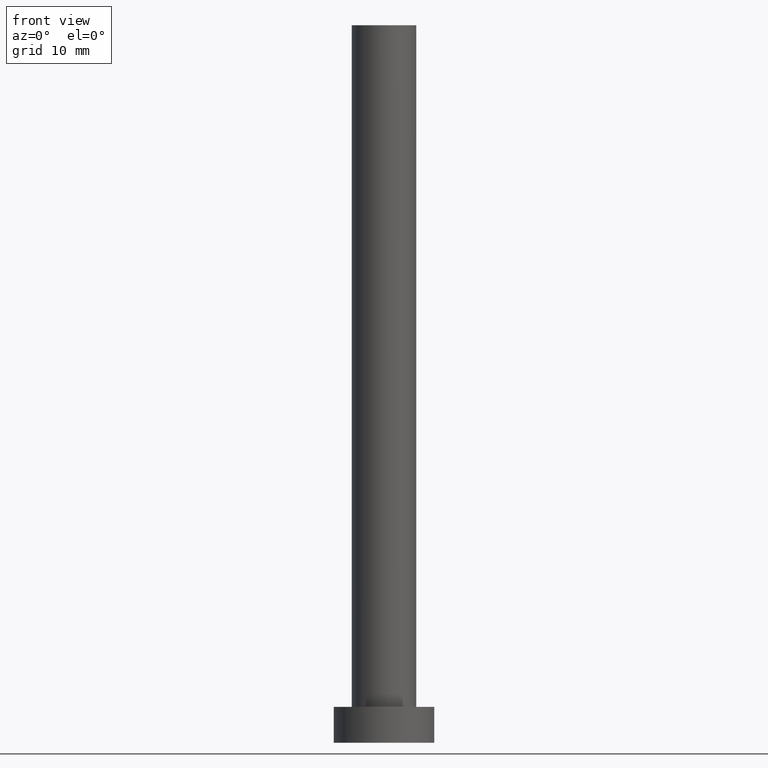
[diagram: clean part render]
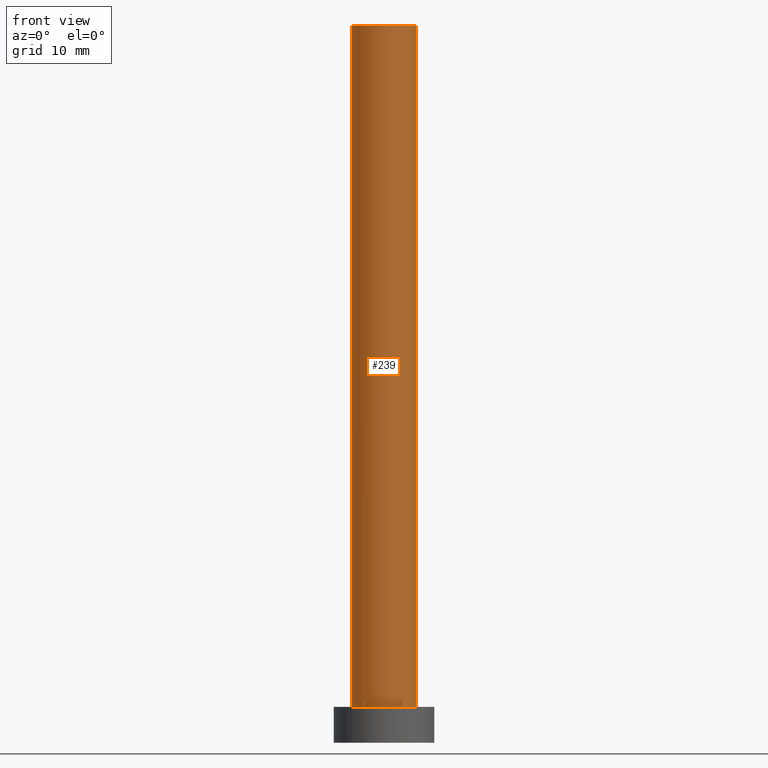
[diagram: same view with one face highlighted and labeled with its STEP entity id]
A machine part, front view. The second image highlights one B-rep face of the part: STEP entity #239.
In plain terms, the highlighted cylindrical surface (edge-blend (fillet) strip) has radius 4.5 mm, axis along (-0, -0, -1).
Its self-contained STEP definition (entity closure, byte-faithful):
#7 = DIRECTION ( 'NONE',  ( -0.000000000000000000, -0.000000000000000000, -1.000000000000000000 ) ) ;
#22 = DIRECTION ( 'NONE',  ( 0.000000000000000000, 0.000000000000000000, 1.000000000000000000 ) ) ;
#24 = CARTESIAN_POINT ( 'NONE',  ( 0.000000000000000000, 0.000000000000000000, 100.0000000000000000 ) ) ;
#38 = VECTOR ( 'NONE', #121, 1000.000000000000000 ) ;
#39 = LINE ( 'NONE', #196, #213 ) ;
#43 = DIRECTION ( 'NONE',  ( -0.000000000000000000, -0.000000000000000000, -1.000000000000000000 ) ) ;
#44 = CARTESIAN_POINT ( 'NONE',  ( 4.500000000000000888, 5.510910596163089556E-16, 100.0000000000000000 ) ) ;
#46 = CARTESIAN_POINT ( 'NONE',  ( 4.500000000000000888, 5.510910596163089556E-16, 100.0000000000000000 ) ) ;
#51 = CARTESIAN_POINT ( 'NONE',  ( -4.500000000000000888, 0.000000000000000000, 5.000000000000000000 ) ) ;
#52 = CIRCLE ( 'NONE', #220, 4.500000000000000888 ) ;
#62 = CARTESIAN_POINT ( 'NONE',  ( -4.500000000000000888, 0.000000000000000000, 100.0000000000000000 ) ) ;
#75 = CYLINDRICAL_SURFACE ( 'NONE', #87, 4.500000000000000888 ) ;
#87 = AXIS2_PLACEMENT_3D ( 'NONE', #165, #7, #96 ) ;
#96 = DIRECTION ( 'NONE',  ( -1.000000000000000000, 0.000000000000000000, 0.000000000000000000 ) ) ;
#103 = EDGE_LOOP ( 'NONE', ( #138, #114, #143, #170 ) ) ;
#105 = DIRECTION ( 'NONE',  ( 1.000000000000000000, 0.000000000000000000, 0.000000000000000000 ) ) ;
#114 = ORIENTED_EDGE ( 'NONE', *, *, #254, .F. ) ;
#120 = AXIS2_PLACEMENT_3D ( 'NONE', #197, #22, #105 ) ;
#121 = DIRECTION ( 'NONE',  ( -0.000000000000000000, -0.000000000000000000, -1.000000000000000000 ) ) ;
#138 = ORIENTED_EDGE ( 'NONE', *, *, #191, .F. ) ;
#142 = FACE_OUTER_BOUND ( 'NONE', #103, .T. ) ;
#143 = ORIENTED_EDGE ( 'NONE', *, *, #166, .T. ) ;
#147 = VERTEX_POINT ( 'NONE', #62 ) ;
#165 = CARTESIAN_POINT ( 'NONE',  ( 0.000000000000000000, 0.000000000000000000, 100.0000000000000000 ) ) ;
#166 = EDGE_CURVE ( 'NONE', #147, #253, #39, .T. ) ;
#169 = DIRECTION ( 'NONE',  ( 1.000000000000000000, 0.000000000000000000, 0.000000000000000000 ) ) ;
#170 = ORIENTED_EDGE ( 'NONE', *, *, #181, .T. ) ;
#179 = VERTEX_POINT ( 'NONE', #44 ) ;
#181 = EDGE_CURVE ( 'NONE', #253, #240, #230, .T. ) ;
#191 = EDGE_CURVE ( 'NONE', #179, #240, #233, .T. ) ;
#196 = CARTESIAN_POINT ( 'NONE',  ( -4.500000000000000888, 0.000000000000000000, 100.0000000000000000 ) ) ;
#197 = CARTESIAN_POINT ( 'NONE',  ( 0.000000000000000000, 0.000000000000000000, 5.000000000000000000 ) ) ;
#200 = DIRECTION ( 'NONE',  ( 0.000000000000000000, 0.000000000000000000, 1.000000000000000000 ) ) ;
#206 = CARTESIAN_POINT ( 'NONE',  ( 4.500000000000000888, 5.510910596163089556E-16, 5.000000000000000000 ) ) ;
#213 = VECTOR ( 'NONE', #43, 1000.000000000000000 ) ;
#220 = AXIS2_PLACEMENT_3D ( 'NONE', #24, #200, #169 ) ;
#230 = CIRCLE ( 'NONE', #120, 4.500000000000000888 ) ;
#233 = LINE ( 'NONE', #46, #38 ) ;
#239 = ADVANCED_FACE ( 'NONE', ( #142 ), #75, .T. ) ;
#240 = VERTEX_POINT ( 'NONE', #206 ) ;
#253 = VERTEX_POINT ( 'NONE', #51 ) ;
#254 = EDGE_CURVE ( 'NONE', #147, #179, #52, .T. ) ;